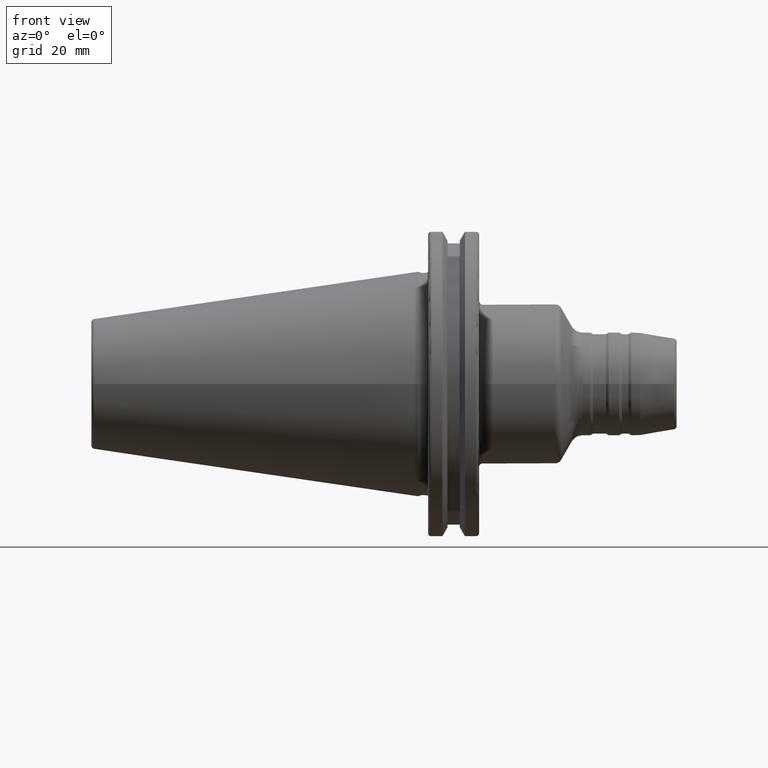
[diagram: clean part render]
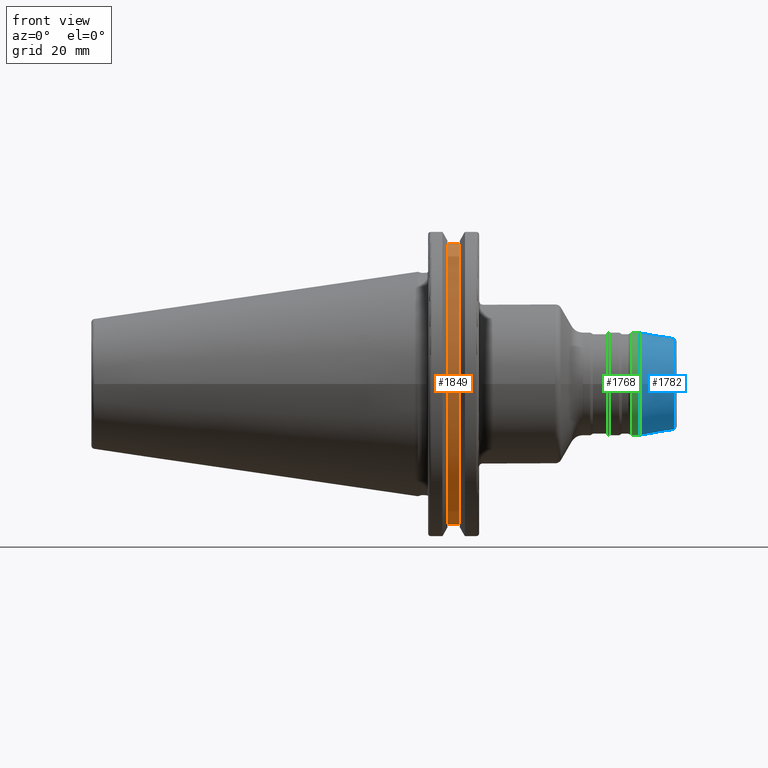
[diagram: same view with three faces highlighted in distinct colors, each labeled with its STEP entity id]
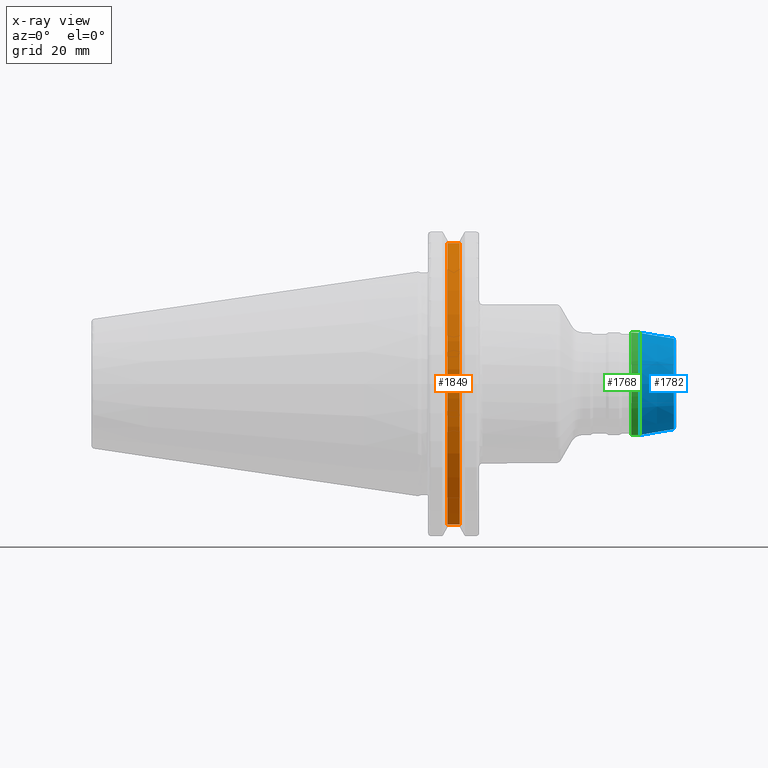
[diagram: x-ray of the same camera — body ghosted, the three highlighted faces saturated]
A machine part, front view with three faces highlighted in distinct colors.
The next image is the same camera in x-ray (body ghosted, the three faces saturated) — at least one of them is partly hidden behind the body in this view.
Their STEP definitions:

[orange] entity #1849 — the highlighted cylindrical surface (partial cylindrical patch) has radius 45.6435 mm, axis along (1, 0, 0).
#260=FACE_OUTER_BOUND('',#384,.T.);
#384=EDGE_LOOP('',(#1681,#1682,#1683,#1684));
#461=LINE('',#3286,#559);
#466=LINE('',#3304,#564);
#559=VECTOR('',#2562,10.);
#564=VECTOR('',#2569,10.);
#706=CIRCLE('',#2112,45.6435);
#708=CIRCLE('',#2116,45.6435);
#854=VERTEX_POINT('',#3283);
#855=VERTEX_POINT('',#3285);
#860=VERTEX_POINT('',#3301);
#861=VERTEX_POINT('',#3303);
#1094=EDGE_CURVE('',#855,#854,#461,.T.);
#1101=EDGE_CURVE('',#861,#860,#466,.T.);
#1159=EDGE_CURVE('',#854,#861,#706,.T.);
#1161=EDGE_CURVE('',#855,#860,#708,.T.);
#1681=ORIENTED_EDGE('',*,*,#1101,.T.);
#1682=ORIENTED_EDGE('',*,*,#1161,.F.);
#1683=ORIENTED_EDGE('',*,*,#1094,.T.);
#1684=ORIENTED_EDGE('',*,*,#1159,.T.);
#1750=CYLINDRICAL_SURFACE('',#2115,45.6435);
#1849=ADVANCED_FACE('',(#260),#1750,.T.);
#2112=AXIS2_PLACEMENT_3D('',#3478,#2687,#2688);
#2115=AXIS2_PLACEMENT_3D('',#3481,#2693,#2694);
#2116=AXIS2_PLACEMENT_3D('',#3482,#2695,#2696);
#2562=DIRECTION('',(-1.,0.,0.));
#2569=DIRECTION('',(1.,0.,0.));
#2687=DIRECTION('center_axis',(1.,0.,0.));
#2688=DIRECTION('ref_axis',(0.,0.,-1.));
#2693=DIRECTION('center_axis',(1.,0.,0.));
#2694=DIRECTION('ref_axis',(0.,-1.,-1.22464679914735E-16));
#2695=DIRECTION('center_axis',(1.,0.,0.));
#2696=DIRECTION('ref_axis',(0.,0.,-1.));
#3283=CARTESIAN_POINT('',(9.21200000000001,-12.95,43.7678716897452));
#3285=CARTESIAN_POINT('',(13.042,-12.95,43.7678716897452));
#3286=CARTESIAN_POINT('',(11.127,-12.95,43.7678716897452));
#3301=CARTESIAN_POINT('',(13.042,-12.95,-43.7678716897452));
#3303=CARTESIAN_POINT('',(9.21200000000001,-12.95,-43.7678716897452));
#3304=CARTESIAN_POINT('',(11.127,-12.95,-43.7678716897452));
#3478=CARTESIAN_POINT('Origin',(9.21200000000001,0.,0.));
#3481=CARTESIAN_POINT('Origin',(11.127,0.,0.));
#3482=CARTESIAN_POINT('Origin',(13.042,0.,0.));

[blue] entity #1782 — the highlighted conical surface has half-angle 10 deg.
#76=CONICAL_SURFACE('',#1979,15.,0.174532925199433);
#193=FACE_OUTER_BOUND('',#302,.T.);
#302=EDGE_LOOP('',(#1326,#1327,#1328,#1329,#1330));
#410=LINE('',#2893,#508);
#508=VECTOR('',#2343,15.);
#628=CIRCLE('',#1935,16.);
#657=CIRCLE('',#1977,14.1457081218349);
#658=CIRCLE('',#1978,14.1457081218349);
#744=VERTEX_POINT('',#2818);
#766=VERTEX_POINT('',#2887);
#767=VERTEX_POINT('',#2889);
#939=EDGE_CURVE('',#744,#744,#628,.T.);
#974=EDGE_CURVE('',#766,#767,#657,.T.);
#975=EDGE_CURVE('',#767,#766,#658,.T.);
#976=EDGE_CURVE('',#767,#744,#410,.T.);
#1326=ORIENTED_EDGE('',*,*,#975,.F.);
#1327=ORIENTED_EDGE('',*,*,#976,.T.);
#1328=ORIENTED_EDGE('',*,*,#939,.T.);
#1329=ORIENTED_EDGE('',*,*,#976,.F.);
#1330=ORIENTED_EDGE('',*,*,#974,.F.);
#1782=ADVANCED_FACE('',(#193),#76,.T.);
#1935=AXIS2_PLACEMENT_3D('',#2819,#2247,#2248);
#1977=AXIS2_PLACEMENT_3D('',#2890,#2337,#2338);
#1978=AXIS2_PLACEMENT_3D('',#2891,#2339,#2340);
#1979=AXIS2_PLACEMENT_3D('',#2892,#2341,#2342);
#2247=DIRECTION('center_axis',(1.,0.,0.));
#2248=DIRECTION('ref_axis',(0.,0.,-1.));
#2337=DIRECTION('center_axis',(1.,0.,0.));
#2338=DIRECTION('ref_axis',(0.,-1.,3.06161699786838E-17));
#2339=DIRECTION('center_axis',(1.,0.,0.));
#2340=DIRECTION('ref_axis',(0.,-1.,3.06161699786838E-17));
#2341=DIRECTION('center_axis',(-1.,0.,0.));
#2342=DIRECTION('ref_axis',(0.,1.,0.));
#2343=DIRECTION('',(-0.984807753012208,-0.17364817766693,-2.12657684957577E-17));
#2818=CARTESIAN_POINT('',(69.1574363607646,-16.,-1.95943487863577E-15));
#2819=CARTESIAN_POINT('Origin',(69.1574363607646,0.,0.));
#2887=CARTESIAN_POINT('',(79.6736481776669,-1.73234961730779E-15,14.1457081218349));
#2889=CARTESIAN_POINT('',(79.6736481776669,-14.1457081218349,-1.73234961730779E-15));
#2890=CARTESIAN_POINT('Origin',(79.6736481776669,0.,-2.16543702163473E-15));
#2891=CARTESIAN_POINT('Origin',(79.6736481776669,0.,-2.16543702163473E-15));
#2892=CARTESIAN_POINT('Origin',(74.8287181803823,0.,0.));
#2893=CARTESIAN_POINT('',(74.8287181803823,-15.,-1.83697019872103E-15));

[green] entity #1768 — the highlighted cylindrical surface (bore or boss wall) has radius 16 mm, axis along (1, 0, 0).
#179=FACE_OUTER_BOUND('',#287,.T.);
#287=EDGE_LOOP('',(#1250,#1251,#1252,#1253,#1254));
#404=LINE('',#2820,#502);
#502=VECTOR('',#2249,16.);
#625=CIRCLE('',#1931,16.);
#626=CIRCLE('',#1932,16.);
#628=CIRCLE('',#1935,16.);
#742=VERTEX_POINT('',#2812);
#743=VERTEX_POINT('',#2813);
#744=VERTEX_POINT('',#2818);
#936=EDGE_CURVE('',#742,#743,#625,.T.);
#937=EDGE_CURVE('',#743,#742,#626,.T.);
#939=EDGE_CURVE('',#744,#744,#628,.T.);
#940=EDGE_CURVE('',#744,#743,#404,.T.);
#1250=ORIENTED_EDGE('',*,*,#939,.F.);
#1251=ORIENTED_EDGE('',*,*,#940,.T.);
#1252=ORIENTED_EDGE('',*,*,#936,.F.);
#1253=ORIENTED_EDGE('',*,*,#937,.F.);
#1254=ORIENTED_EDGE('',*,*,#940,.F.);
#1723=CYLINDRICAL_SURFACE('',#1934,16.);
#1768=ADVANCED_FACE('',(#179),#1723,.T.);
#1931=AXIS2_PLACEMENT_3D('',#2814,#2239,#2240);
#1932=AXIS2_PLACEMENT_3D('',#2815,#2241,#2242);
#1934=AXIS2_PLACEMENT_3D('',#2817,#2245,#2246);
#1935=AXIS2_PLACEMENT_3D('',#2819,#2247,#2248);
#2239=DIRECTION('center_axis',(-1.,0.,0.));
#2240=DIRECTION('ref_axis',(0.,-1.,1.83697019872103E-16));
#2241=DIRECTION('center_axis',(-1.,0.,0.));
#2242=DIRECTION('ref_axis',(0.,-1.,1.83697019872103E-16));
#2245=DIRECTION('center_axis',(1.,0.,0.));
#2246=DIRECTION('ref_axis',(0.,1.,0.));
#2247=DIRECTION('center_axis',(1.,0.,0.));
#2248=DIRECTION('ref_axis',(0.,0.,-1.));
#2249=DIRECTION('',(-1.,0.,0.));
#2812=CARTESIAN_POINT('',(66.4732050807569,-1.95943487863577E-15,16.));
#2813=CARTESIAN_POINT('',(66.4732050807569,-16.,-1.95943487863577E-15));
#2814=CARTESIAN_POINT('Origin',(66.4732050807569,0.,0.));
#2815=CARTESIAN_POINT('Origin',(66.4732050807569,0.,0.));
#2817=CARTESIAN_POINT('Origin',(67.7617308822745,0.,0.));
#2818=CARTESIAN_POINT('',(69.1574363607646,-16.,-1.95943487863577E-15));
#2819=CARTESIAN_POINT('Origin',(69.1574363607646,0.,0.));
#2820=CARTESIAN_POINT('',(67.7617308822745,-16.,-1.95943487863577E-15));